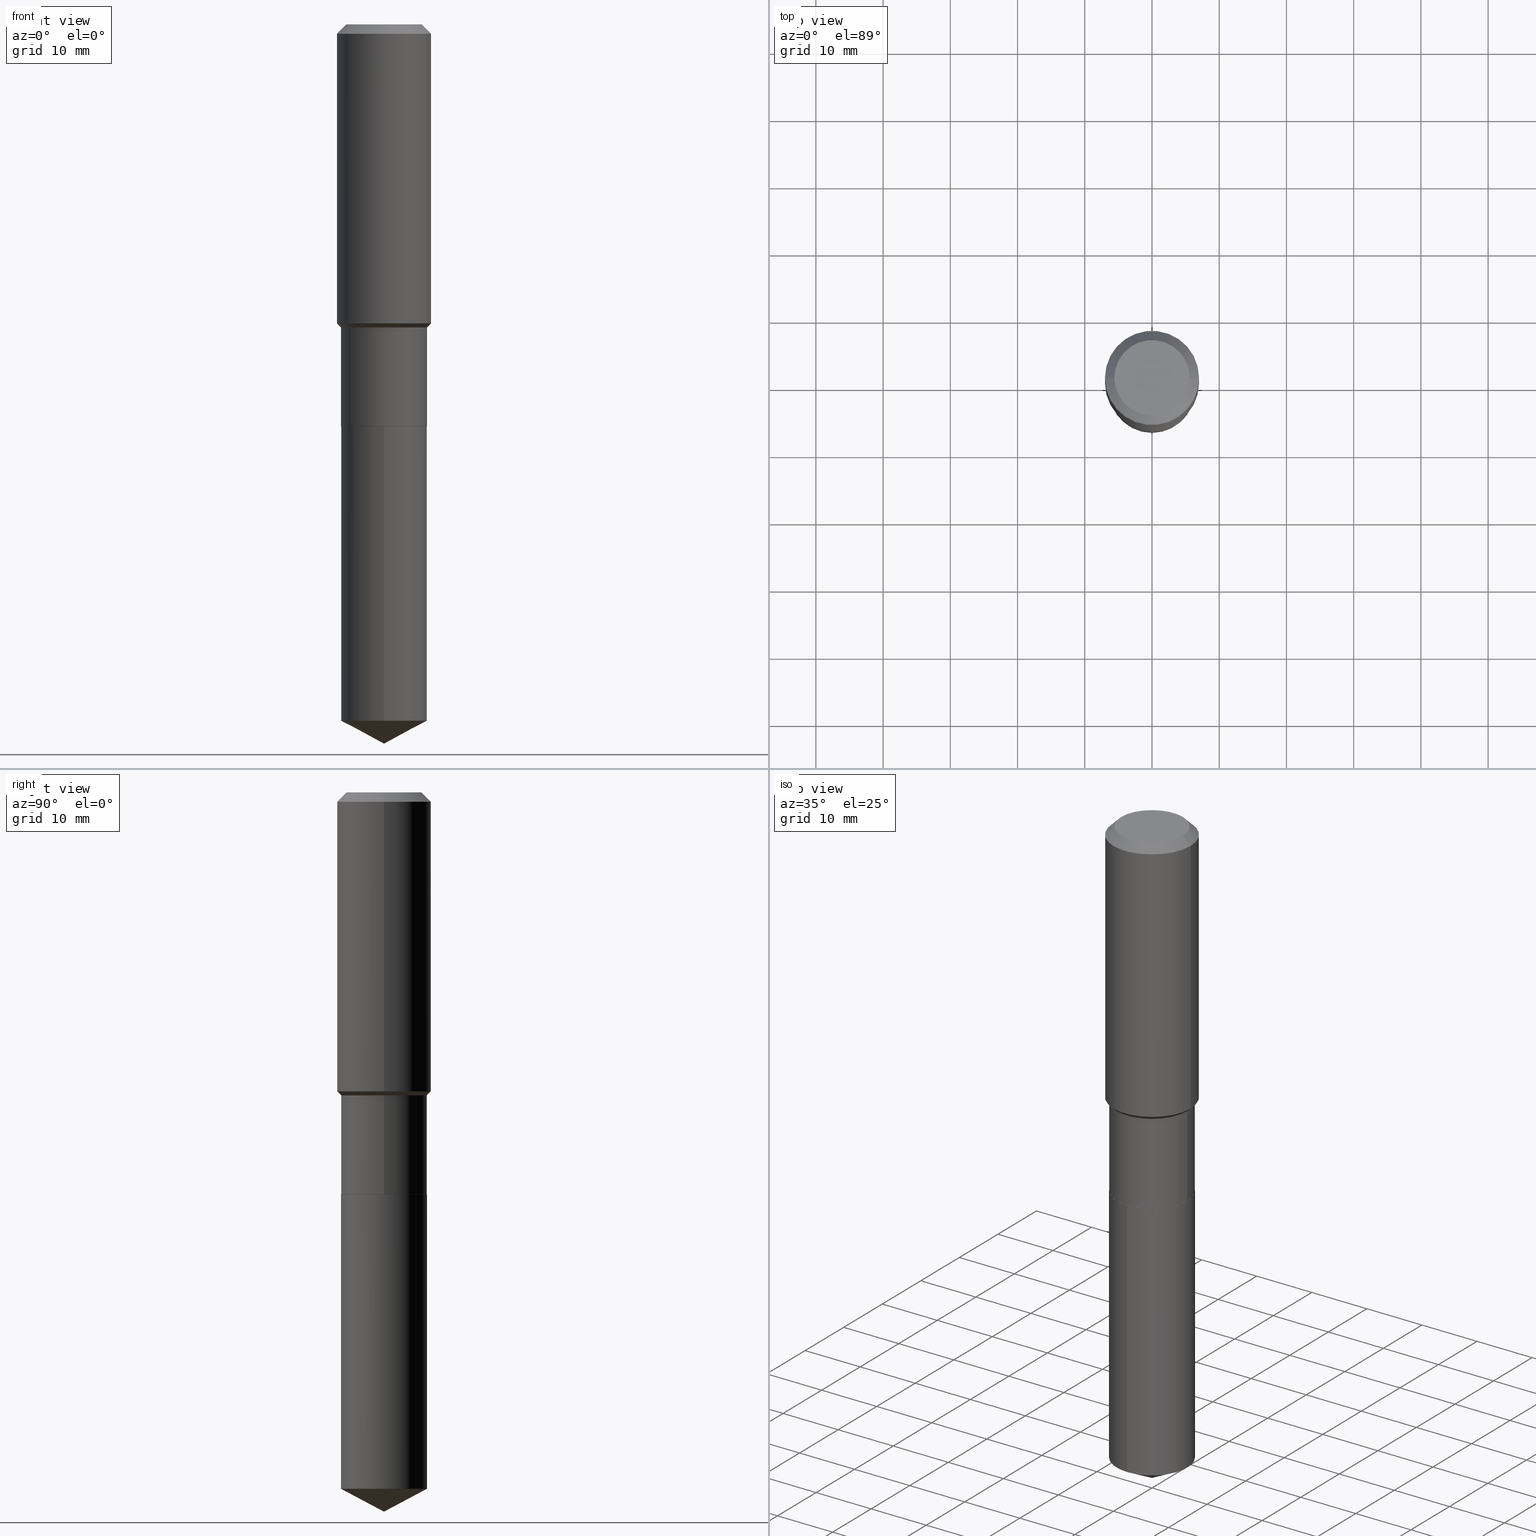
[diagram: canonical four-view strip — front | top / right | iso, engineering-drawing reading convention]
A machine part, canonical four-view strip (front | top / right | iso — engineering-drawing reading convention). The complete STEP part file that produces these views, byte-faithful:
ISO-10303-21;
HEADER;
FILE_DESCRIPTION (( 'STEP AP203' ),
    '1' );
FILE_NAME ('64692.STEP',
    '2024-04-24T18:49:10',
    ( '' ),
    ( '' ),
    'SwSTEP 2.0',
    'SolidWorks 2023',
    '' );
FILE_SCHEMA (( 'CONFIG_CONTROL_DESIGN' ));
ENDSEC;

DATA;
#1 = DIRECTION ( 'NONE',  ( -6.982962677686265922E-15, -1.000000000000000000, 4.337127197720600657E-15 ) ) ;
#2 = CARTESIAN_POINT ( 'NONE',  ( 0.2519499999999999518, -1.759357446643054800E-15, 1.228552738661785732E-29 ) ) ;
#3 = DIRECTION ( 'NONE',  ( 1.000000000000000000, -6.982962677686269077E-15, 0.000000000000000000 ) ) ;
#4 = CIRCLE ( 'NONE', #15, 0.2204800000000000093 ) ;
#5 = ORIENTED_EDGE ( 'NONE', *, *, #376, .T. ) ;
#6 = ORIENTED_EDGE ( 'NONE', *, *, #69, .F. ) ;
#7 = FACE_OUTER_BOUND ( 'NONE', #84, .T. ) ;
#8 = CARTESIAN_POINT ( 'NONE',  ( -1.759357446642997213E-15, -0.2519500000000082229, -2.354299999999999393 ) ) ;
#9 = ORIENTED_EDGE ( 'NONE', *, *, #152, .F. ) ;
#10 = ORIENTED_EDGE ( 'NONE', *, *, #380, .T. ) ;
#11 = DIRECTION ( 'NONE',  ( -2.445468806185136597E-29, 3.491481338843145583E-15, 1.000000000000000000 ) ) ;
#12 = ORIENTED_EDGE ( 'NONE', *, *, #199, .F. ) ;
#13 = AXIS2_PLACEMENT_3D ( 'NONE', #359, #68, #222 ) ;
#14 = EDGE_LOOP ( 'NONE', ( #254, #248, #279, #188 ) ) ;
#15 = AXIS2_PLACEMENT_3D ( 'NONE', #281, #56, #207 ) ;
#16 = EDGE_CURVE ( 'NONE', #89, #325, #437, .T. ) ;
#17 = MANIFOLD_SOLID_BREP ( 'Body-Move/Copy2[2]', #51 ) ;
#18 = APPROVAL_DATE_TIME ( #223, #322 ) ;
#19 = EDGE_CURVE ( 'NONE', #355, #283, #35, .T. ) ;
#20 = DIRECTION ( 'NONE',  ( -6.982962677686265922E-15, -1.000000000000000000, 3.252845398290450098E-15 ) ) ;
#21 = ORIENTED_EDGE ( 'NONE', *, *, #366, .F. ) ;
#22 = LOCAL_TIME ( 14, 49, 10.00000000000000000, #472 ) ;
#23 = DIRECTION ( 'NONE',  ( -2.445468806185136877E-29, 3.491481338843145188E-15, 1.000000000000000000 ) ) ;
#24 = ADVANCED_FACE ( 'NONE', ( #475 ), #137, .T. ) ;
#25 = ORIENTED_EDGE ( 'NONE', *, *, #30, .T. ) ;
#26 = DIRECTION ( 'NONE',  ( -2.445732278377951745E-29, 3.491104031667128479E-15, 1.000000000000000000 ) ) ;
#27 = DIRECTION ( 'NONE',  ( 1.000000000000000000, -6.982962677686263555E-15, 0.000000000000000000 ) ) ;
#28 = AXIS2_PLACEMENT_3D ( 'NONE', #33, #261, #478 ) ;
#29 = CARTESIAN_POINT ( 'NONE',  ( 0.2756000000000002337, -8.038612060485511055E-15, -1.751149999999999984 ) ) ;
#30 = EDGE_CURVE ( 'NONE', #116, #486, #316, .T. ) ;
#31 = CARTESIAN_POINT ( 'NONE',  ( -4.719860820353095009E-47, 6.738710358733624243E-33, 1.930043355456227170E-18 ) ) ;
#32 = EDGE_LOOP ( 'NONE', ( #434, #264, #314, #85 ) ) ;
#33 = CARTESIAN_POINT ( 'NONE',  ( 1.347942405969256063E-30, -1.924504513970354330E-16, -0.05512000000000035621 ) ) ;
#34 = PERSON_AND_ORGANIZATION ( #308, #445 ) ;
#35 = CIRCLE ( 'NONE', #353, 0.2519500000000000073 ) ;
#36 = CARTESIAN_POINT ( 'NONE',  ( -0.2519499999999999518, -4.406468657431244300E-15, -1.774800000000000155 ) ) ;
#37 = CONICAL_SURFACE ( 'NONE', #317, 74.04434902938382379, 1.082104136236488046 ) ;
#38 = DIRECTION ( 'NONE',  ( -2.445732278377951745E-29, 3.491104031667128479E-15, 1.000000000000000000 ) ) ;
#39 = PERSON_AND_ORGANIZATION ( #308, #445 ) ;
#40 = DIRECTION ( 'NONE',  ( 1.000000000000000000, -6.982962677686267499E-15, 0.000000000000000000 ) ) ;
#41 = DIRECTION ( 'NONE',  ( -2.445468806185136877E-29, 3.491481338843145188E-15, 1.000000000000000000 ) ) ;
#42 = CARTESIAN_POINT ( 'NONE',  ( 3.971264563627302430E-29, -1.077779516486871561E-14, -2.354300000000000725 ) ) ;
#43 = CIRCLE ( 'NONE', #444, 0.2519499999999999518 ) ;
#44 = AXIS2_PLACEMENT_3D ( 'NONE', #288, #461, #124 ) ;
#45 = ORIENTED_EDGE ( 'NONE', *, *, #136, .T. ) ;
#46 = LINE ( 'NONE', #198, #275 ) ;
#47 = VERTEX_POINT ( 'NONE', #397 ) ;
#48 = ADVANCED_FACE ( 'NONE', ( #356 ), #331, .T. ) ;
#49 = PERSON_AND_ORGANIZATION_ROLE ( 'creator' ) ;
#50 = VERTEX_POINT ( 'NONE', #29 ) ;
#51 = CLOSED_SHELL ( 'NONE', ( #315, #83, #186, #395, #344, #24, #433, #245, #460, #126, #345, #48 ) ) ;
#52 = VECTOR ( 'NONE', #73, 39.37007874015748143 ) ;
#53 = VERTEX_POINT ( 'NONE', #70 ) ;
#54 = DIRECTION ( 'NONE',  ( -2.445468806185136597E-29, 3.491481338843145583E-15, 1.000000000000000000 ) ) ;
#55 = ORIENTED_EDGE ( 'NONE', *, *, #410, .F. ) ;
#56 = DIRECTION ( 'NONE',  ( -2.445468806185136597E-29, 3.491481338843145583E-15, 1.000000000000000000 ) ) ;
#57 =( NAMED_UNIT ( * ) SI_UNIT ( $, .STERADIAN. ) SOLID_ANGLE_UNIT ( ) );
#58 = CC_DESIGN_DATE_AND_TIME_ASSIGNMENT ( #328, #368, ( #403 ) ) ;
#59 = PLANE ( 'NONE',  #44 ) ;
#60 = APPLICATION_CONTEXT ( 'configuration controlled 3d designs of mechanical parts and assemblies' ) ;
#61 = AXIS2_PLACEMENT_3D ( 'NONE', #313, #189, #407 ) ;
#62 = APPROVAL_PERSON_ORGANIZATION ( #347, #102, #146 ) ;
#63 = EDGE_LOOP ( 'NONE', ( #25, #172, #364, #305 ) ) ;
#64 = DIRECTION ( 'NONE',  ( 0.7071067811864267805, -2.468850131080992517E-15, 0.7071067811866682540 ) ) ;
#65 = CARTESIAN_POINT ( 'NONE',  ( 5.757367210401669319E-29, -8.219994516038420659E-15, -2.354300000000000725 ) ) ;
#66 = DIRECTION ( 'NONE',  ( 1.000000000000000000, 0.000000000000000000, 0.000000000000000000 ) ) ;
#67 = AXIS2_PLACEMENT_3D ( 'NONE', #373, #38, #1 ) ;
#68 = DIRECTION ( 'NONE',  ( -2.445468806185136597E-29, 3.491481338843145583E-15, 1.000000000000000000 ) ) ;
#69 = EDGE_CURVE ( 'NONE', #150, #50, #480, .T. ) ;
#70 = CARTESIAN_POINT ( 'NONE',  ( -0.2519499999999999518, -5.417252505026335098E-15, -1.774800000000000155 ) ) ;
#71 = CC_DESIGN_PERSON_AND_ORGANIZATION_ASSIGNMENT ( #229, #49, ( #402 ) ) ;
#72 = LINE ( 'NONE', #36, #194 ) ;
#73 = DIRECTION ( 'NONE',  ( -2.445468806185136877E-29, 3.491481338843145188E-15, 1.000000000000000000 ) ) ;
#74 = AXIS2_PLACEMENT_3D ( 'NONE', #273, #455, #418 ) ;
#75 = CARTESIAN_POINT ( 'NONE',  ( 0.2519499999999999518, -7.956038526821870387E-15, -1.774800000000000155 ) ) ;
#76 = DATE_AND_TIME ( #304, #422 ) ;
#77 = CARTESIAN_POINT ( 'NONE',  ( -8.598640087377329559E-28, 1.227375274787306404E-13, 35.15747874015747954 ) ) ;
#78 = CARTESIAN_POINT ( 'NONE',  ( 0.2519500000000000073, -9.977606222012053561E-15, -2.353800000000000558 ) ) ;
#79 = CYLINDRICAL_SURFACE ( 'NONE', #393, 0.2519500000000000073 ) ;
#80 = DIRECTION ( 'NONE',  ( -2.445468806185136597E-29, 3.491481338843145583E-15, 1.000000000000000000 ) ) ;
#81 = VECTOR ( 'NONE', #258, 39.37007874015748143 ) ;
#82 = EDGE_LOOP ( 'NONE', ( #416, #476, #12, #165 ) ) ;
#83 = ADVANCED_FACE ( 'NONE', ( #253 ), #174, .T. ) ;
#84 = EDGE_LOOP ( 'NONE', ( #462, #197, #169, #6 ) ) ;
#85 = ORIENTED_EDGE ( 'NONE', *, *, #380, .F. ) ;
#86 = ORIENTED_EDGE ( 'NONE', *, *, #136, .F. ) ;
#87 = FACE_OUTER_BOUND ( 'NONE', #82, .T. ) ;
#88 = VECTOR ( 'NONE', #297, 39.37007874015748854 ) ;
#89 = VERTEX_POINT ( 'NONE', #219 ) ;
#90 = LINE ( 'NONE', #390, #251 ) ;
#91 = COORDINATED_UNIVERSAL_TIME_OFFSET ( 5, 0, .BEHIND. ) ;
#92 = ORIENTED_EDGE ( 'NONE', *, *, #30, .F. ) ;
#93 = ORIENTED_EDGE ( 'NONE', *, *, #410, .T. ) ;
#94 = AXIS2_PLACEMENT_3D ( 'NONE', #270, #343, #381 ) ;
#95 = ORIENTED_EDGE ( 'NONE', *, *, #19, .F. ) ;
#96 = SECURITY_CLASSIFICATION ( '', '', #456 ) ;
#97 = EDGE_CURVE ( 'NONE', #116, #192, #170, .T. ) ;
#98 = DIRECTION ( 'NONE',  ( 1.000000000000000000, -6.982962677686267499E-15, 4.876176775795935793E-29 ) ) ;
#99 = DIRECTION ( 'NONE',  ( -2.445468806185136597E-29, 3.491481338843145583E-15, 1.000000000000000000 ) ) ;
#100 = EDGE_LOOP ( 'NONE', ( #5, #129 ) ) ;
#101 = DIRECTION ( 'NONE',  ( 2.438088387897960049E-29, -3.491481338843145188E-15, -1.000000000000000000 ) ) ;
#102 = APPROVAL ( #164, 'UNSPECIFIED' ) ;
#103 = VECTOR ( 'NONE', #130, 39.37007874015748143 ) ;
#104 = CONICAL_SURFACE ( 'NONE', #482, 74.04434902938382379, 1.082104136236488046 ) ;
#105 = CARTESIAN_POINT ( 'NONE',  ( 4.282382699951101703E-29, -6.114107546515174524E-15, -1.751149999999999984 ) ) ;
#106 = EDGE_CURVE ( 'NONE', #486, #116, #426, .T. ) ;
#107 = CARTESIAN_POINT ( 'NONE',  ( 1.347942405969256063E-30, -1.924504513970354330E-16, -0.05512000000000035621 ) ) ;
#108 = DIRECTION ( 'NONE',  ( 1.000000000000000000, -6.982962677686267499E-15, 0.000000000000000000 ) ) ;
#109 = DIRECTION ( 'NONE',  ( -2.445732278377951745E-29, 3.491104031667128479E-15, 1.000000000000000000 ) ) ;
#110 = CARTESIAN_POINT ( 'NONE',  ( 5.757367210401669319E-29, -8.219994516038420659E-15, -2.354300000000000725 ) ) ;
#111 = CARTESIAN_POINT ( 'NONE',  ( 4.340218037217380899E-29, -6.196681080178815981E-15, -1.774800000000000155 ) ) ;
#112 = CYLINDRICAL_SURFACE ( 'NONE', #320, 0.2519499999999999518 ) ;
#113 = DIRECTION ( 'NONE',  ( -2.445732278377952025E-29, 3.491104031667128479E-15, 1.000000000000000000 ) ) ;
#114 = DIRECTION ( 'NONE',  ( -2.445468806185136597E-29, 3.491481338843145583E-15, 1.000000000000000000 ) ) ;
#115 = DIRECTION ( 'NONE',  ( -2.445468806185136597E-29, 3.491481338843145583E-15, 1.000000000000000000 ) ) ;
#116 = VERTEX_POINT ( 'NONE', #295 ) ;
#117 = CARTESIAN_POINT ( 'NONE',  ( 4.340218037217380899E-29, -6.196681080178815981E-15, -1.774800000000000155 ) ) ;
#118 = EDGE_CURVE ( 'NONE', #324, #50, #250, .T. ) ;
#119 = CIRCLE ( 'NONE', #213, 0.2519500000000000073 ) ;
#120 = AXIS2_PLACEMENT_3D ( 'NONE', #187, #177, #66 ) ;
#121 = ORIENTED_EDGE ( 'NONE', *, *, #296, .F. ) ;
#122 = LINE ( 'NONE', #318, #103 ) ;
#123 = APPROVAL_DATE_TIME ( #76, #102 ) ;
#124 = DIRECTION ( 'NONE',  ( 6.982962677686265922E-15, 1.000000000000000000, -3.491104031667128479E-15 ) ) ;
#125 = APPROVAL_ROLE ( '' ) ;
#126 = ADVANCED_FACE ( 'NONE', ( #326 ), #470, .F. ) ;
#127 = CONICAL_SURFACE ( 'NONE', #163, 0.2514500000000000068, 0.7853981633972775267 ) ;
#128 = CC_DESIGN_APPROVAL ( #322, ( #403 ) ) ;
#129 = ORIENTED_EDGE ( 'NONE', *, *, #152, .T. ) ;
#130 = DIRECTION ( 'NONE',  ( -2.445468806185136877E-29, 3.491481338843145188E-15, 1.000000000000000000 ) ) ;
#131 = ORIENTED_EDGE ( 'NONE', *, *, #329, .F. ) ;
#132 = UNCERTAINTY_MEASURE_WITH_UNIT (LENGTH_MEASURE( 1.000000000000000082E-05 ), #208, 'distance_accuracy_value', 'NONE');
#133 = DIRECTION ( 'NONE',  ( 1.000000000000000000, -6.982962677686267499E-15, 0.000000000000000000 ) ) ;
#134 = VERTEX_POINT ( 'NONE', #217 ) ;
#135 = APPROVAL_ROLE ( '' ) ;
#136 = EDGE_CURVE ( 'NONE', #408, #141, #481, .T. ) ;
#137 = CYLINDRICAL_SURFACE ( 'NONE', #153, 0.2519499999999999518 ) ;
#138 = AXIS2_PLACEMENT_3D ( 'NONE', #65, #323, #27 ) ;
#139 =( LENGTH_UNIT ( ) NAMED_UNIT ( * ) SI_UNIT ( $, .METRE. ) );
#140 = CARTESIAN_POINT ( 'NONE',  ( 5.757367210401668198E-29, -8.219994516038419081E-15, -2.354300000000000281 ) ) ;
#141 = VERTEX_POINT ( 'NONE', #301 ) ;
#142 = DIRECTION ( 'NONE',  ( 1.000000000000000000, -6.982962677686263555E-15, 0.000000000000000000 ) ) ;
#143 = CARTESIAN_POINT ( 'NONE',  ( 1.030165121072787101E-28, -1.470840143236994038E-14, -4.212600000000000122 ) ) ;
#144 = CC_DESIGN_APPROVAL ( #365, ( #402 ) ) ;
#145 = CARTESIAN_POINT ( 'NONE',  ( 1.030290267436248259E-28, -1.470662484380094311E-14, -4.212600000000000122 ) ) ;
#146 = APPROVAL_ROLE ( '' ) ;
#147 = CARTESIAN_POINT ( 'NONE',  ( -8.598640087377329559E-28, 1.227375274787306404E-13, 35.15747874015747954 ) ) ;
#148 = CARTESIAN_POINT ( 'NONE',  ( 1.790212422747629662E-15, 0.2519499999999917361, -2.354300000000001170 ) ) ;
#149 = COORDINATED_UNIVERSAL_TIME_OFFSET ( 5, 0, .BEHIND. ) ;
#150 = VERTEX_POINT ( 'NONE', #400 ) ;
#151 = DIRECTION ( 'NONE',  ( -2.445732278377951745E-29, 3.491104031667128479E-15, 1.000000000000000000 ) ) ;
#152 = EDGE_CURVE ( 'NONE', #89, #134, #309, .T. ) ;
#153 = AXIS2_PLACEMENT_3D ( 'NONE', #439, #367, #98 ) ;
#154 = FACE_OUTER_BOUND ( 'NONE', #63, .T. ) ;
#155 = AXIS2_PLACEMENT_3D ( 'NONE', #117, #115, #133 ) ;
#156 = ORIENTED_EDGE ( 'NONE', *, *, #106, .F. ) ;
#157 = DIRECTION ( 'NONE',  ( -2.445468806185136597E-29, 3.491481338843145583E-15, 1.000000000000000000 ) ) ;
#158 = CYLINDRICAL_SURFACE ( 'NONE', #419, 0.2756000000000001227 ) ;
#159 = ORIENTED_EDGE ( 'NONE', *, *, #289, .T. ) ;
#160 = DIRECTION ( 'NONE',  ( -6.982962677686265922E-15, -1.000000000000000000, 4.337127197720600657E-15 ) ) ;
#161 = CARTESIAN_POINT ( 'NONE',  ( 1.790212422747672261E-15, 0.2519499999999917361, -2.354300000000001170 ) ) ;
#162 = LENGTH_MEASURE_WITH_UNIT ( LENGTH_MEASURE( 0.02539999999999999897 ), #139 );
#163 = AXIS2_PLACEMENT_3D ( 'NONE', #110, #266, #409 ) ;
#164 = APPROVAL_STATUS ( 'not_yet_approved' ) ;
#165 = ORIENTED_EDGE ( 'NONE', *, *, #118, .F. ) ;
#166 = CARTESIAN_POINT ( 'NONE',  ( 5.756144475998575397E-29, -8.218248775368998366E-15, -2.353800000000000558 ) ) ;
#167 = FACE_OUTER_BOUND ( 'NONE', #346, .T. ) ;
#168 = EDGE_CURVE ( 'NONE', #408, #327, #178, .T. ) ;
#169 = ORIENTED_EDGE ( 'NONE', *, *, #118, .T. ) ;
#170 = LINE ( 'NONE', #363, #362 ) ;
#171 = EDGE_CURVE ( 'NONE', #327, #283, #405, .T. ) ;
#172 = ORIENTED_EDGE ( 'NONE', *, *, #415, .T. ) ;
#173 = CARTESIAN_POINT ( 'NONE',  ( 5.757367210401669319E-29, -8.219994516038420659E-15, -2.354300000000000725 ) ) ;
#174 = CONICAL_SURFACE ( 'NONE', #28, 0.2756000000000000116, 0.7853981633974452814 ) ;
#175 = CIRCLE ( 'NONE', #483, 0.2519500000000000073 ) ;
#176 = CARTESIAN_POINT ( 'NONE',  ( 0.2519499999999999518, -7.956038526821870387E-15, -1.774800000000000155 ) ) ;
#177 = DIRECTION ( 'NONE',  ( 0.000000000000000000, 0.000000000000000000, 1.000000000000000000 ) ) ;
#178 = LINE ( 'NONE', #143, #88 ) ;
#179 = MANIFOLD_SOLID_BREP ( 'Body-Move/Copy2[1]', #401 ) ;
#180 = ORIENTED_EDGE ( 'NONE', *, *, #19, .T. ) ;
#181 = DIRECTION ( 'NONE',  ( -1.000000000000000000, 6.982962677686265922E-15, -4.876176775795935793E-29 ) ) ;
#182 = APPLICATION_PROTOCOL_DEFINITION ( 'international standard', 'config_control_design', 1994, #60 ) ;
#183 = PERSON_AND_ORGANIZATION_ROLE ( 'design_supplier' ) ;
#184 = LOCAL_TIME ( 14, 49, 10.00000000000000000, #91 ) ;
#185 = DIRECTION ( 'NONE',  ( -0.7071067811865495711, 7.493145998870362049E-15, 0.7071067811865454633 ) ) ;
#186 = ADVANCED_FACE ( 'NONE', ( #369 ), #158, .T. ) ;
#187 = CARTESIAN_POINT ( 'NONE',  ( 0.000000000000000000, 0.000000000000000000, 0.000000000000000000 ) ) ;
#188 = ORIENTED_EDGE ( 'NONE', *, *, #468, .F. ) ;
#189 = DIRECTION ( 'NONE',  ( -2.445468806185136597E-29, 3.491481338843145583E-15, 1.000000000000000000 ) ) ;
#190 = SHAPE_DEFINITION_REPRESENTATION ( #233, #226 ) ;
#191 = CARTESIAN_POINT ( 'NONE',  ( 0.2756000000000000116, -2.116954965367370658E-15, -0.05512000000000035621 ) ) ;
#192 = VERTEX_POINT ( 'NONE', #78 ) ;
#193 = DIRECTION ( 'NONE',  ( -6.982962677686264344E-15, -1.000000000000000000, 3.541896320645547064E-15 ) ) ;
#194 = VECTOR ( 'NONE', #185, 39.37007874015748143 ) ;
#195 = CARTESIAN_POINT ( 'NONE',  ( 0.000000000000000000, 0.000000000000000000, 0.000000000000000000 ) ) ;
#196 = LOCAL_TIME ( 14, 49, 10.00000000000000000, #300 ) ;
#197 = ORIENTED_EDGE ( 'NONE', *, *, #485, .T. ) ;
#198 = CARTESIAN_POINT ( 'NONE',  ( -0.2519499999999999518, 1.790212422747572076E-15, -1.239325695989723260E-29 ) ) ;
#199 = EDGE_CURVE ( 'NONE', #50, #150, #212, .T. ) ;
#200 = EDGE_LOOP ( 'NONE', ( #357, #384, #216, #246 ) ) ;
#201 = DIRECTION ( 'NONE',  ( -2.438088387897960049E-29, 3.491481338843145188E-15, 1.000000000000000000 ) ) ;
#202 = CARTESIAN_POINT ( 'NONE',  ( -0.2519500000000000073, -5.417252505026335098E-15, -2.353800000000000558 ) ) ;
#203 = VECTOR ( 'NONE', #413, 39.37007874015748143 ) ;
#204 = APPROVAL_STATUS ( 'not_yet_approved' ) ;
#205 = EDGE_CURVE ( 'NONE', #192, #490, #220, .T. ) ;
#206 = CARTESIAN_POINT ( 'NONE',  ( 1.030289179589496098E-28, -1.470662484380094311E-14, -4.212600000000000122 ) ) ;
#207 = DIRECTION ( 'NONE',  ( 1.000000000000000000, -6.982962677686266711E-15, 4.876132675269083677E-29 ) ) ;
#208 =( CONVERSION_BASED_UNIT ( 'INCH', #162 ) LENGTH_UNIT ( ) NAMED_UNIT ( #247 ) );
#209 = PERSON_AND_ORGANIZATION ( #308, #445 ) ;
#210 = DIRECTION ( 'NONE',  ( 1.000000000000000000, -6.982962677686269077E-15, 0.000000000000000000 ) ) ;
#211 = EDGE_CURVE ( 'NONE', #53, #150, #72, .T. ) ;
#212 = CIRCLE ( 'NONE', #74, 0.2756000000000002337 ) ;
#213 = AXIS2_PLACEMENT_3D ( 'NONE', #414, #151, #160 ) ;
#214 = CC_DESIGN_APPROVAL ( #102, ( #96 ) ) ;
#215 = DIRECTION ( 'NONE',  ( -2.445468806185136597E-29, 3.491481338843145583E-15, 1.000000000000000000 ) ) ;
#216 = ORIENTED_EDGE ( 'NONE', *, *, #477, .F. ) ;
#217 = CARTESIAN_POINT ( 'NONE',  ( -0.2204800000000000093, 1.635828836874783961E-15, 3.860086710901350968E-18 ) ) ;
#218 = APPROVAL_STATUS ( 'not_yet_approved' ) ;
#219 = CARTESIAN_POINT ( 'NONE',  ( 0.2204800000000000093, -1.797903149065768707E-15, 3.860086710924123164E-18 ) ) ;
#220 = CIRCLE ( 'NONE', #238, 0.2519500000000000073 ) ;
#221 = ORIENTED_EDGE ( 'NONE', *, *, #293, .F. ) ;
#222 = DIRECTION ( 'NONE',  ( 1.000000000000000000, -6.982962677686266711E-15, 4.876132675269083677E-29 ) ) ;
#223 = DATE_AND_TIME ( #391, #354 ) ;
#224 = EDGE_CURVE ( 'NONE', #134, #47, #339, .T. ) ;
#225 = EDGE_LOOP ( 'NONE', ( #442, #10, #291, #348 ) ) ;
#226 = ADVANCED_BREP_SHAPE_REPRESENTATION ( '64692', ( #179, #17, #120 ), #231 ) ;
#227 = CARTESIAN_POINT ( 'NONE',  ( -1.759357446642997213E-15, -0.2519500000000082229, -2.354299999999999393 ) ) ;
#228 = PERSON_AND_ORGANIZATION_ROLE ( 'design_owner' ) ;
#229 = PERSON_AND_ORGANIZATION ( #308, #445 ) ;
#230 = CARTESIAN_POINT ( 'NONE',  ( 4.340218037217380899E-29, -6.196681080178815981E-15, -1.774800000000000155 ) ) ;
#231 =( GEOMETRIC_REPRESENTATION_CONTEXT ( 3 ) GLOBAL_UNCERTAINTY_ASSIGNED_CONTEXT ( ( #132 ) ) GLOBAL_UNIT_ASSIGNED_CONTEXT ( ( #208, #458, #57 ) ) REPRESENTATION_CONTEXT ( 'NONE', 'WORKASPACE' ) );
#232 = CARTESIAN_POINT ( 'NONE',  ( -1.759357446642955206E-15, -0.2519500000000142181, -4.078635808692890663 ) ) ;
#233 = PRODUCT_DEFINITION_SHAPE ( 'NONE', 'NONE',  #403 ) ;
#234 = DIRECTION ( 'NONE',  ( -2.445732278377951745E-29, 3.491104031667128479E-15, 1.000000000000000000 ) ) ;
#235 = CARTESIAN_POINT ( 'NONE',  ( 5.756144475998575397E-29, -8.218248775368998366E-15, -2.353800000000000558 ) ) ;
#236 = FACE_OUTER_BOUND ( 'NONE', #383, .T. ) ;
#237 = DIRECTION ( 'NONE',  ( 1.000000000000000000, -6.982962677686265922E-15, 0.000000000000000000 ) ) ;
#238 = AXIS2_PLACEMENT_3D ( 'NONE', #235, #80, #3 ) ;
#239 = CYLINDRICAL_SURFACE ( 'NONE', #94, 0.2756000000000001227 ) ;
#240 = AXIS2_PLACEMENT_3D ( 'NONE', #107, #272, #237 ) ;
#241 = ORIENTED_EDGE ( 'NONE', *, *, #376, .F. ) ;
#242 = PERSON_AND_ORGANIZATION_ROLE ( 'classification_officer' ) ;
#243 = CARTESIAN_POINT ( 'NONE',  ( 4.340218037217380899E-29, -6.196681080178815981E-15, -1.774800000000000155 ) ) ;
#244 = VECTOR ( 'NONE', #361, 39.37007874015748143 ) ;
#245 = ADVANCED_FACE ( 'NONE', ( #341 ), #239, .T. ) ;
#246 = ORIENTED_EDGE ( 'NONE', *, *, #423, .F. ) ;
#247 = DIMENSIONAL_EXPONENTS ( 1.000000000000000000, 0.000000000000000000, 0.000000000000000000, 0.000000000000000000, 0.000000000000000000, 0.000000000000000000, 0.000000000000000000 ) ;
#248 = ORIENTED_EDGE ( 'NONE', *, *, #262, .T. ) ;
#249 = CC_DESIGN_PERSON_AND_ORGANIZATION_ASSIGNMENT ( #302, #228, ( #306 ) ) ;
#250 = LINE ( 'NONE', #176, #244 ) ;
#251 = VECTOR ( 'NONE', #23, 39.37007874015748143 ) ;
#252 = CYLINDRICAL_SURFACE ( 'NONE', #268, 0.2519500000000000073 ) ;
#253 = FACE_OUTER_BOUND ( 'NONE', #290, .T. ) ;
#254 = ORIENTED_EDGE ( 'NONE', *, *, #205, .T. ) ;
#255 = DATE_AND_TIME ( #292, #22 ) ;
#256 = DIRECTION ( 'NONE',  ( -6.982962677686265922E-15, -1.000000000000000000, 3.252845398290450098E-15 ) ) ;
#257 = EDGE_LOOP ( 'NONE', ( #274, #241, #389, #420 ) ) ;
#258 = DIRECTION ( 'NONE',  ( 6.273719981627770021E-15, 0.8829475928589302081, 0.4694715627858844220 ) ) ;
#259 = AXIS2_PLACEMENT_3D ( 'NONE', #42, #201, #277 ) ;
#260 = VECTOR ( 'NONE', #429, 39.37007874015748143 ) ;
#261 = DIRECTION ( 'NONE',  ( 2.445468806185136597E-29, -3.491481338843145583E-15, -1.000000000000000000 ) ) ;
#262 = EDGE_CURVE ( 'NONE', #490, #53, #46, .T. ) ;
#263 = FACE_OUTER_BOUND ( 'NONE', #404, .T. ) ;
#264 = ORIENTED_EDGE ( 'NONE', *, *, #106, .T. ) ;
#265 = EDGE_CURVE ( 'NONE', #324, #53, #43, .T. ) ;
#266 = DIRECTION ( 'NONE',  ( -2.445468806185136597E-29, 3.491481338843145583E-15, 1.000000000000000000 ) ) ;
#267 = VECTOR ( 'NONE', #113, 39.37007874015748143 ) ;
#268 = AXIS2_PLACEMENT_3D ( 'NONE', #336, #109, #333 ) ;
#269 = DIRECTION ( 'NONE',  ( -0.7071067811865453523, 2.468850131082234184E-15, -0.7071067811865496822 ) ) ;
#270 = CARTESIAN_POINT ( 'NONE',  ( 0.000000000000000000, 0.000000000000000000, 0.000000000000000000 ) ) ;
#271 = ORIENTED_EDGE ( 'NONE', *, *, #69, .T. ) ;
#272 = DIRECTION ( 'NONE',  ( -2.445468806185136597E-29, 3.491481338843145583E-15, 1.000000000000000000 ) ) ;
#273 = CARTESIAN_POINT ( 'NONE',  ( 4.282382699951101703E-29, -6.114107546515174524E-15, -1.751149999999999984 ) ) ;
#274 = ORIENTED_EDGE ( 'NONE', *, *, #16, .F. ) ;
#275 = VECTOR ( 'NONE', #41, 39.37007874015748143 ) ;
#276 = APPROVAL_PERSON_ORGANIZATION ( #471, #365, #135 ) ;
#277 = DIRECTION ( 'NONE',  ( 1.000000000000000000, -6.982962677686265922E-15, 4.876176775795935793E-29 ) ) ;
#278 = AXIS2_PLACEMENT_3D ( 'NONE', #243, #54, #388 ) ;
#279 = ORIENTED_EDGE ( 'NONE', *, *, #265, .F. ) ;
#280 = EDGE_LOOP ( 'NONE', ( #93, #180 ) ) ;
#281 = CARTESIAN_POINT ( 'NONE',  ( -9.439721640706190018E-47, 1.347742071746724849E-32, 3.860086710912454339E-18 ) ) ;
#282 = COORDINATED_UNIVERSAL_TIME_OFFSET ( 5, 0, .BEHIND. ) ;
#283 = VERTEX_POINT ( 'NONE', #8 ) ;
#284 = FACE_OUTER_BOUND ( 'NONE', #280, .T. ) ;
#285 = CIRCLE ( 'NONE', #61, 0.2756000000000000116 ) ;
#286 = CC_DESIGN_PERSON_AND_ORGANIZATION_ASSIGNMENT ( #34, #242, ( #96 ) ) ;
#287 = CONICAL_SURFACE ( 'NONE', #465, 0.2756000000000000116, 0.7853981633974452814 ) ;
#288 = CARTESIAN_POINT ( 'NONE',  ( 5.757367210401668198E-29, -8.219994516038419081E-15, -2.354300000000000281 ) ) ;
#289 = EDGE_CURVE ( 'NONE', #327, #141, #119, .T. ) ;
#290 = EDGE_LOOP ( 'NONE', ( #9, #454, #349, #440 ) ) ;
#291 = ORIENTED_EDGE ( 'NONE', *, *, #468, .T. ) ;
#292 = CALENDAR_DATE ( 2024, 24, 4 ) ;
#293 = EDGE_CURVE ( 'NONE', #141, #355, #488, .T. ) ;
#294 = DIRECTION ( 'NONE',  ( 0.7071067811865453523, -7.319954787623248157E-15, -0.7071067811865496822 ) ) ;
#295 = CARTESIAN_POINT ( 'NONE',  ( 0.2514500000000000068, -9.975860481342631268E-15, -2.354300000000000725 ) ) ;
#296 = EDGE_CURVE ( 'NONE', #47, #325, #285, .T. ) ;
#297 = DIRECTION ( 'NONE',  ( -6.165590087286839185E-15, -0.8829475928589269884, 0.4694715627858906393 ) ) ;
#298 = AXIS2_PLACEMENT_3D ( 'NONE', #398, #99, #142 ) ;
#299 = ADVANCED_FACE ( 'NONE', ( #263 ), #79, .T. ) ;
#300 = COORDINATED_UNIVERSAL_TIME_OFFSET ( 5, 0, .BEHIND. ) ;
#301 = CARTESIAN_POINT ( 'NONE',  ( 1.790212422747671867E-15, 0.2519499999999857409, -4.078635808692893328 ) ) ;
#302 = PERSON_AND_ORGANIZATION ( #308, #445 ) ;
#303 = CARTESIAN_POINT ( 'NONE',  ( 5.757367210401668198E-29, -8.219994516038419081E-15, -2.354300000000000281 ) ) ;
#304 = CALENDAR_DATE ( 2024, 24, 4 ) ;
#305 = ORIENTED_EDGE ( 'NONE', *, *, #97, .F. ) ;
#306 = PRODUCT ( '64692', '64692', '', ( #441 ) ) ;
#307 = FACE_OUTER_BOUND ( 'NONE', #14, .T. ) ;
#308 = PERSON ( 'UNSPECIFIED', 'UNSPECIFIED', 'UNSPECIFIED', ('UNSPECIFIED'), ('UNSPECIFIED'), ('UNSPECIFIED') ) ;
#309 = CIRCLE ( 'NONE', #13, 0.2204800000000000093 ) ;
#310 = DIRECTION ( 'NONE',  ( -2.445468806185136597E-29, 3.491481338843145583E-15, 1.000000000000000000 ) ) ;
#311 = FACE_OUTER_BOUND ( 'NONE', #257, .T. ) ;
#312 = DIRECTION ( 'NONE',  ( 1.000000000000000000, -6.982962677686267499E-15, 4.876176775795935793E-29 ) ) ;
#313 = CARTESIAN_POINT ( 'NONE',  ( 1.347942405969256063E-30, -1.924504513970354330E-16, -0.05512000000000035621 ) ) ;
#314 = ORIENTED_EDGE ( 'NONE', *, *, #97, .T. ) ;
#315 = ADVANCED_FACE ( 'NONE', ( #154 ), #127, .T. ) ;
#316 = CIRCLE ( 'NONE', #411, 0.2514500000000000068 ) ;
#317 = AXIS2_PLACEMENT_3D ( 'NONE', #147, #358, #193 ) ;
#318 = CARTESIAN_POINT ( 'NONE',  ( -0.2756000000000001227, 1.958255779754836984E-15, -1.355658510874252567E-29 ) ) ;
#319 = LINE ( 'NONE', #463, #260 ) ;
#320 = AXIS2_PLACEMENT_3D ( 'NONE', #451, #310, #453 ) ;
#321 = CIRCLE ( 'NONE', #155, 0.2519499999999999518 ) ;
#322 = APPROVAL ( #204, 'UNSPECIFIED' ) ;
#323 = DIRECTION ( 'NONE',  ( -2.445468806185136597E-29, 3.491481338843145583E-15, 1.000000000000000000 ) ) ;
#324 = VERTEX_POINT ( 'NONE', #75 ) ;
#325 = VERTEX_POINT ( 'NONE', #191 ) ;
#326 = FACE_OUTER_BOUND ( 'NONE', #100, .T. ) ;
#327 = VERTEX_POINT ( 'NONE', #232 ) ;
#328 = DATE_AND_TIME ( #392, #184 ) ;
#329 = EDGE_CURVE ( 'NONE', #141, #327, #435, .T. ) ;
#330 = DIRECTION ( 'NONE',  ( 1.000000000000000000, -6.982962677686267499E-15, 0.000000000000000000 ) ) ;
#331 = CONICAL_SURFACE ( 'NONE', #298, 0.2514500000000000068, 0.7853981633972775267 ) ;
#332 = APPLICATION_CONTEXT ( 'configuration controlled 3d designs of mechanical parts and assemblies' ) ;
#333 = DIRECTION ( 'NONE',  ( -6.982962677686265922E-15, -1.000000000000000000, 3.252845398290450098E-15 ) ) ;
#334 = CARTESIAN_POINT ( 'NONE',  ( -0.2756000000000000116, 1.732054062573300039E-15, -0.05512000000000035621 ) ) ;
#335 = APPLICATION_PROTOCOL_DEFINITION ( 'international standard', 'config_control_design', 1994, #332 ) ;
#336 = CARTESIAN_POINT ( 'NONE',  ( 5.757367210401668198E-29, -8.219994516038419081E-15, -2.354300000000000281 ) ) ;
#337 = DIRECTION ( 'NONE',  ( -6.982962677686265922E-15, -1.000000000000000000, 3.252845398290450098E-15 ) ) ;
#338 = DIRECTION ( 'NONE',  ( -6.982962677686264344E-15, -1.000000000000000000, 3.541896320645547064E-15 ) ) ;
#339 = LINE ( 'NONE', #334, #473 ) ;
#340 = AXIS2_PLACEMENT_3D ( 'NONE', #105, #447, #330 ) ;
#341 = FACE_OUTER_BOUND ( 'NONE', #450, .T. ) ;
#342 = ORIENTED_EDGE ( 'NONE', *, *, #289, .F. ) ;
#343 = DIRECTION ( 'NONE',  ( -2.445468806185136597E-29, 3.491481338843145583E-15, 1.000000000000000000 ) ) ;
#344 = ADVANCED_FACE ( 'NONE', ( #307 ), #112, .T. ) ;
#345 = ADVANCED_FACE ( 'NONE', ( #236 ), #377, .F. ) ;
#346 = EDGE_LOOP ( 'NONE', ( #221, #375, #431, #95 ) ) ;
#347 = PERSON_AND_ORGANIZATION ( #308, #445 ) ;
#348 = ORIENTED_EDGE ( 'NONE', *, *, #485, .F. ) ;
#349 = ORIENTED_EDGE ( 'NONE', *, *, #477, .T. ) ;
#350 = CC_DESIGN_SECURITY_CLASSIFICATION ( #96, ( #402 ) ) ;
#351 = CARTESIAN_POINT ( 'NONE',  ( 5.757367210401668198E-29, -8.219994516038419081E-15, -2.354300000000000281 ) ) ;
#352 = DIRECTION ( 'NONE',  ( -2.445732278377951745E-29, 3.491104031667128479E-15, 1.000000000000000000 ) ) ;
#353 = AXIS2_PLACEMENT_3D ( 'NONE', #140, #26, #256 ) ;
#354 = LOCAL_TIME ( 14, 49, 10.00000000000000000, #282 ) ;
#355 = VERTEX_POINT ( 'NONE', #161 ) ;
#356 = FACE_OUTER_BOUND ( 'NONE', #32, .T. ) ;
#357 = ORIENTED_EDGE ( 'NONE', *, *, #199, .T. ) ;
#358 = DIRECTION ( 'NONE',  ( -2.445732278377951745E-29, 3.491104031667128479E-15, 1.000000000000000000 ) ) ;
#359 = CARTESIAN_POINT ( 'NONE',  ( -9.439721640706190018E-47, 1.347742071746724849E-32, 3.860086710912454339E-18 ) ) ;
#360 = APPROVAL_DATE_TIME ( #255, #365 ) ;
#361 = DIRECTION ( 'NONE',  ( 0.7071067811865495711, -2.468850131082277965E-15, 0.7071067811865454633 ) ) ;
#362 = VECTOR ( 'NONE', #64, 39.37007874015748143 ) ;
#363 = CARTESIAN_POINT ( 'NONE',  ( 0.2514500000000000068, -9.975860481342631268E-15, -2.354300000000000725 ) ) ;
#364 = ORIENTED_EDGE ( 'NONE', *, *, #205, .F. ) ;
#365 = APPROVAL ( #218, 'UNSPECIFIED' ) ;
#366 = EDGE_CURVE ( 'NONE', #150, #47, #122, .T. ) ;
#367 = DIRECTION ( 'NONE',  ( -2.445468806185136597E-29, 3.491481338843145583E-15, 1.000000000000000000 ) ) ;
#368 = DATE_TIME_ROLE ( 'creation_date' ) ;
#369 = FACE_OUTER_BOUND ( 'NONE', #200, .T. ) ;
#370 = CIRCLE ( 'NONE', #240, 0.2756000000000000116 ) ;
#371 = CALENDAR_DATE ( 2024, 24, 4 ) ;
#372 = FACE_OUTER_BOUND ( 'NONE', #459, .T. ) ;
#373 = CARTESIAN_POINT ( 'NONE',  ( 9.974630956484820377E-29, -1.423983020971417209E-14, -4.078635808692891551 ) ) ;
#374 = ADVANCED_FACE ( 'NONE', ( #284 ), #59, .F. ) ;
#375 = ORIENTED_EDGE ( 'NONE', *, *, #329, .T. ) ;
#376 = EDGE_CURVE ( 'NONE', #134, #89, #4, .T. ) ;
#377 = PLANE ( 'NONE',  #259 ) ;
#378 = CONICAL_SURFACE ( 'NONE', #278, 0.2519499999999999518, 0.7853981633974511656 ) ;
#379 = FACE_OUTER_BOUND ( 'NONE', #438, .T. ) ;
#380 = EDGE_CURVE ( 'NONE', #490, #192, #175, .T. ) ;
#381 = DIRECTION ( 'NONE',  ( 1.000000000000000000, -6.982962677686267499E-15, 4.876176775795935793E-29 ) ) ;
#382 = CARTESIAN_POINT ( 'NONE',  ( -0.2514500000000000068, -6.430685579795536309E-15, -2.354300000000000725 ) ) ;
#383 = EDGE_LOOP ( 'NONE', ( #92, #156 ) ) ;
#384 = ORIENTED_EDGE ( 'NONE', *, *, #366, .T. ) ;
#385 = ORIENTED_EDGE ( 'NONE', *, *, #293, .T. ) ;
#386 = DESIGN_CONTEXT ( 'detailed design', #60, 'design' ) ;
#387 = AXIS2_PLACEMENT_3D ( 'NONE', #111, #157, #40 ) ;
#388 = DIRECTION ( 'NONE',  ( 1.000000000000000000, -6.982962677686267499E-15, 0.000000000000000000 ) ) ;
#389 = ORIENTED_EDGE ( 'NONE', *, *, #224, .T. ) ;
#390 = CARTESIAN_POINT ( 'NONE',  ( 0.2756000000000001227, -1.924504513970336137E-15, 1.343874319409360548E-29 ) ) ;
#391 = CALENDAR_DATE ( 2024, 24, 4 ) ;
#392 = CALENDAR_DATE ( 2024, 24, 4 ) ;
#393 = AXIS2_PLACEMENT_3D ( 'NONE', #303, #449, #337 ) ;
#394 = APPROVAL_PERSON_ORGANIZATION ( #489, #322, #125 ) ;
#395 = ADVANCED_FACE ( 'NONE', ( #87 ), #378, .T. ) ;
#396 = ORIENTED_EDGE ( 'NONE', *, *, #168, .F. ) ;
#397 = CARTESIAN_POINT ( 'NONE',  ( -0.2756000000000000116, -1.195023219201267736E-15, -0.05512000000000035621 ) ) ;
#398 = CARTESIAN_POINT ( 'NONE',  ( 5.757367210401669319E-29, -8.219994516038420659E-15, -2.354300000000000725 ) ) ;
#399 = ORIENTED_EDGE ( 'NONE', *, *, #168, .T. ) ;
#400 = CARTESIAN_POINT ( 'NONE',  ( -0.2756000000000002337, -4.155851766760337145E-15, -1.751149999999999984 ) ) ;
#401 = CLOSED_SHELL ( 'NONE', ( #299, #484, #467, #432, #374 ) ) ;
#402 = PRODUCT_DEFINITION_FORMATION_WITH_SPECIFIED_SOURCE ( 'ANY', '', #306, .NOT_KNOWN. ) ;
#403 = PRODUCT_DEFINITION ( 'UNKNOWN', '', #402, #386 ) ;
#404 = EDGE_LOOP ( 'NONE', ( #159, #385, #55, #428 ) ) ;
#405 = LINE ( 'NONE', #227, #203 ) ;
#406 = CARTESIAN_POINT ( 'NONE',  ( 1.347942405969256063E-30, -1.924504513970354330E-16, -0.05512000000000035621 ) ) ;
#407 = DIRECTION ( 'NONE',  ( 1.000000000000000000, -6.982962677686265922E-15, 0.000000000000000000 ) ) ;
#408 = VERTEX_POINT ( 'NONE', #206 ) ;
#409 = DIRECTION ( 'NONE',  ( 1.000000000000000000, -6.982962677686263555E-15, 0.000000000000000000 ) ) ;
#410 = EDGE_CURVE ( 'NONE', #283, #355, #436, .T. ) ;
#411 = AXIS2_PLACEMENT_3D ( 'NONE', #173, #215, #443 ) ;
#412 = DIRECTION ( 'NONE',  ( 2.445468806185136597E-29, -3.491481338843145583E-15, -1.000000000000000000 ) ) ;
#413 = DIRECTION ( 'NONE',  ( -2.445732278377952025E-29, 3.491104031667128479E-15, 1.000000000000000000 ) ) ;
#414 = CARTESIAN_POINT ( 'NONE',  ( 9.974630956484820377E-29, -1.423983020971417209E-14, -4.078635808692891551 ) ) ;
#415 = EDGE_CURVE ( 'NONE', #486, #490, #319, .T. ) ;
#416 = ORIENTED_EDGE ( 'NONE', *, *, #265, .T. ) ;
#417 = LINE ( 'NONE', #2, #52 ) ;
#418 = DIRECTION ( 'NONE',  ( 1.000000000000000000, -6.982962677686267499E-15, 0.000000000000000000 ) ) ;
#419 = AXIS2_PLACEMENT_3D ( 'NONE', #195, #114, #312 ) ;
#420 = ORIENTED_EDGE ( 'NONE', *, *, #296, .T. ) ;
#421 = VECTOR ( 'NONE', #294, 39.37007874015748143 ) ;
#422 = LOCAL_TIME ( 14, 49, 10.00000000000000000, #149 ) ;
#423 = EDGE_CURVE ( 'NONE', #50, #325, #90, .T. ) ;
#424 = CC_DESIGN_DATE_AND_TIME_ASSIGNMENT ( #446, #448, ( #96 ) ) ;
#425 = DIRECTION ( 'NONE',  ( -2.445468806185136597E-29, 3.491481338843145583E-15, 1.000000000000000000 ) ) ;
#426 = CIRCLE ( 'NONE', #138, 0.2514500000000000068 ) ;
#427 = AXIS2_PLACEMENT_3D ( 'NONE', #351, #352, #20 ) ;
#428 = ORIENTED_EDGE ( 'NONE', *, *, #171, .F. ) ;
#429 = DIRECTION ( 'NONE',  ( -0.7071067811864267805, 7.493145998869918709E-15, 0.7071067811866682540 ) ) ;
#430 = PERSON_AND_ORGANIZATION_ROLE ( 'creator' ) ;
#431 = ORIENTED_EDGE ( 'NONE', *, *, #171, .T. ) ;
#432 = ADVANCED_FACE ( 'NONE', ( #167 ), #252, .T. ) ;
#433 = ADVANCED_FACE ( 'NONE', ( #7 ), #474, .T. ) ;
#434 = ORIENTED_EDGE ( 'NONE', *, *, #415, .F. ) ;
#435 = CIRCLE ( 'NONE', #67, 0.2519500000000000073 ) ;
#436 = CIRCLE ( 'NONE', #427, 0.2519500000000000073 ) ;
#437 = LINE ( 'NONE', #479, #421 ) ;
#438 = EDGE_LOOP ( 'NONE', ( #396, #45, #342 ) ) ;
#439 = CARTESIAN_POINT ( 'NONE',  ( 0.000000000000000000, 0.000000000000000000, 0.000000000000000000 ) ) ;
#440 = ORIENTED_EDGE ( 'NONE', *, *, #224, .F. ) ;
#441 = MECHANICAL_CONTEXT ( 'NONE', #332, 'mechanical' ) ;
#442 = ORIENTED_EDGE ( 'NONE', *, *, #262, .F. ) ;
#443 = DIRECTION ( 'NONE',  ( 1.000000000000000000, -6.982962677686263555E-15, 0.000000000000000000 ) ) ;
#444 = AXIS2_PLACEMENT_3D ( 'NONE', #230, #11, #108 ) ;
#445 = ORGANIZATION ( 'UNSPECIFIED', 'UNSPECIFIED', '' ) ;
#446 = DATE_AND_TIME ( #371, #196 ) ;
#447 = DIRECTION ( 'NONE',  ( -2.445468806185136597E-29, 3.491481338843145583E-15, 1.000000000000000000 ) ) ;
#448 = DATE_TIME_ROLE ( 'classification_date' ) ;
#449 = DIRECTION ( 'NONE',  ( -2.445732278377951745E-29, 3.491104031667128479E-15, 1.000000000000000000 ) ) ;
#450 = EDGE_LOOP ( 'NONE', ( #21, #271, #457, #121 ) ) ;
#451 = CARTESIAN_POINT ( 'NONE',  ( 0.000000000000000000, 0.000000000000000000, 0.000000000000000000 ) ) ;
#452 = AXIS2_PLACEMENT_3D ( 'NONE', #31, #101, #181 ) ;
#453 = DIRECTION ( 'NONE',  ( 1.000000000000000000, -6.982962677686267499E-15, 4.876176775795935793E-29 ) ) ;
#454 = ORIENTED_EDGE ( 'NONE', *, *, #16, .T. ) ;
#455 = DIRECTION ( 'NONE',  ( -2.445468806185136597E-29, 3.491481338843145583E-15, 1.000000000000000000 ) ) ;
#456 = SECURITY_CLASSIFICATION_LEVEL ( 'unclassified' ) ;
#457 = ORIENTED_EDGE ( 'NONE', *, *, #423, .T. ) ;
#458 =( NAMED_UNIT ( * ) PLANE_ANGLE_UNIT ( ) SI_UNIT ( $, .RADIAN. ) );
#459 = EDGE_LOOP ( 'NONE', ( #86, #399, #131 ) ) ;
#460 = ADVANCED_FACE ( 'NONE', ( #311 ), #287, .T. ) ;
#461 = DIRECTION ( 'NONE',  ( 2.445732278377951465E-29, -3.491104031667128479E-15, -1.000000000000000000 ) ) ;
#462 = ORIENTED_EDGE ( 'NONE', *, *, #211, .F. ) ;
#463 = CARTESIAN_POINT ( 'NONE',  ( -0.2514500000000000068, -6.433334806969648298E-15, -2.354300000000000725 ) ) ;
#464 = CC_DESIGN_PERSON_AND_ORGANIZATION_ASSIGNMENT ( #209, #430, ( #403 ) ) ;
#465 = AXIS2_PLACEMENT_3D ( 'NONE', #406, #412, #487 ) ;
#466 = PRODUCT_RELATED_PRODUCT_CATEGORY ( 'detail', '', ( #306 ) ) ;
#467 = ADVANCED_FACE ( 'NONE', ( #372 ), #104, .T. ) ;
#468 = EDGE_CURVE ( 'NONE', #192, #324, #417, .T. ) ;
#469 = CC_DESIGN_PERSON_AND_ORGANIZATION_ASSIGNMENT ( #39, #183, ( #402 ) ) ;
#470 = PLANE ( 'NONE',  #452 ) ;
#471 = PERSON_AND_ORGANIZATION ( #308, #445 ) ;
#472 = COORDINATED_UNIVERSAL_TIME_OFFSET ( 5, 0, .BEHIND. ) ;
#473 = VECTOR ( 'NONE', #269, 39.37007874015748143 ) ;
#474 = CONICAL_SURFACE ( 'NONE', #387, 0.2519499999999999518, 0.7853981633974511656 ) ;
#475 = FACE_OUTER_BOUND ( 'NONE', #225, .T. ) ;
#476 = ORIENTED_EDGE ( 'NONE', *, *, #211, .T. ) ;
#477 = EDGE_CURVE ( 'NONE', #325, #47, #370, .T. ) ;
#478 = DIRECTION ( 'NONE',  ( -1.000000000000000000, 6.982962677686269077E-15, 0.000000000000000000 ) ) ;
#479 = CARTESIAN_POINT ( 'NONE',  ( 0.2756000000000000116, -2.083203699582869812E-15, -0.05512000000000035621 ) ) ;
#480 = CIRCLE ( 'NONE', #340, 0.2756000000000002337 ) ;
#481 = LINE ( 'NONE', #145, #81 ) ;
#482 = AXIS2_PLACEMENT_3D ( 'NONE', #77, #234, #338 ) ;
#483 = AXIS2_PLACEMENT_3D ( 'NONE', #166, #425, #210 ) ;
#484 = ADVANCED_FACE ( 'NONE', ( #379 ), #37, .T. ) ;
#485 = EDGE_CURVE ( 'NONE', #53, #324, #321, .T. ) ;
#486 = VERTEX_POINT ( 'NONE', #382 ) ;
#487 = DIRECTION ( 'NONE',  ( -1.000000000000000000, 6.982962677686269077E-15, 0.000000000000000000 ) ) ;
#488 = LINE ( 'NONE', #148, #267 ) ;
#489 = PERSON_AND_ORGANIZATION ( #308, #445 ) ;
#490 = VERTEX_POINT ( 'NONE', #202 ) ;
ENDSEC;
END-ISO-10303-21;
